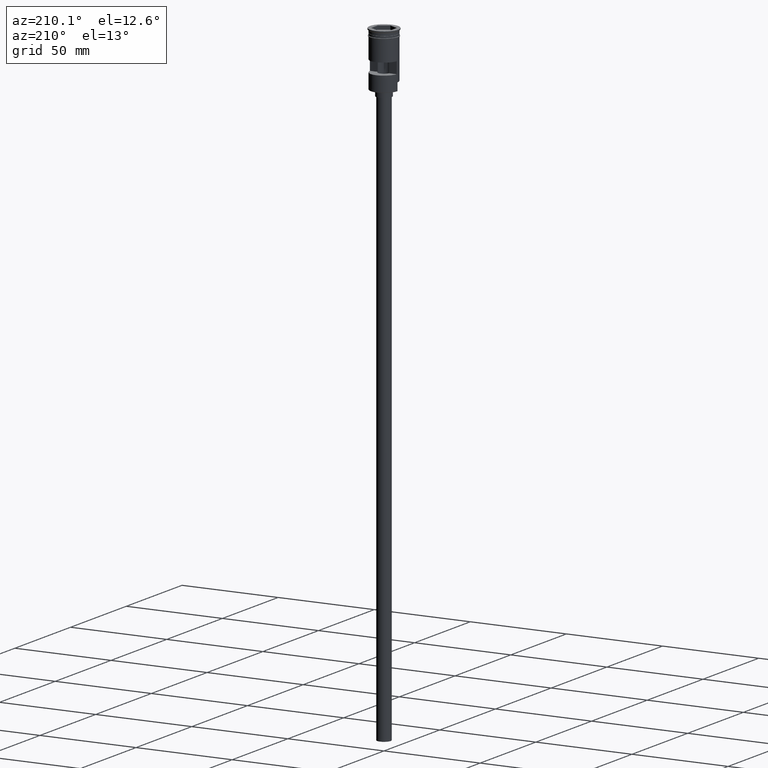
[diagram: clean part render]
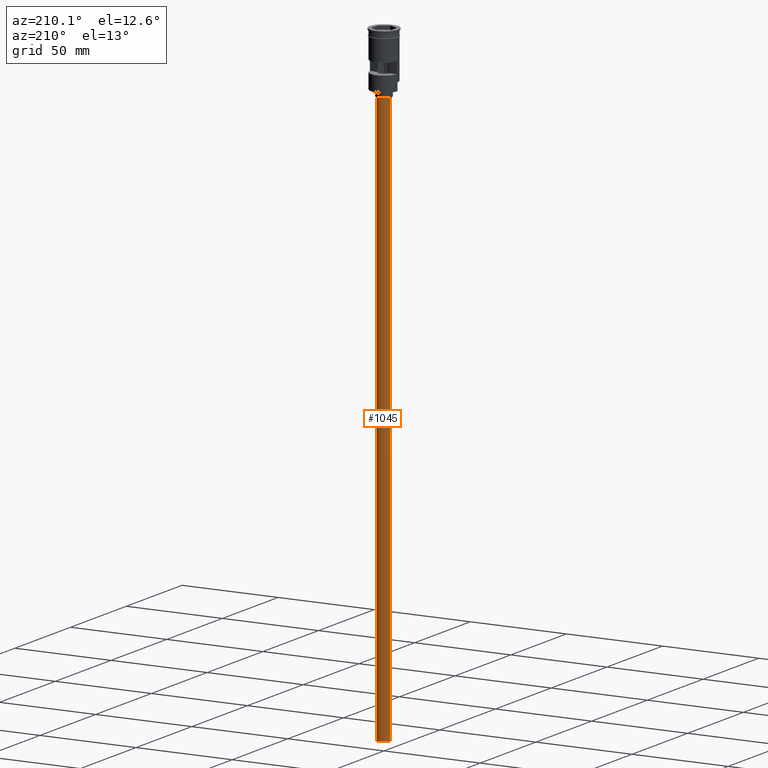
[diagram: same view with one face highlighted and labeled with its STEP entity id]
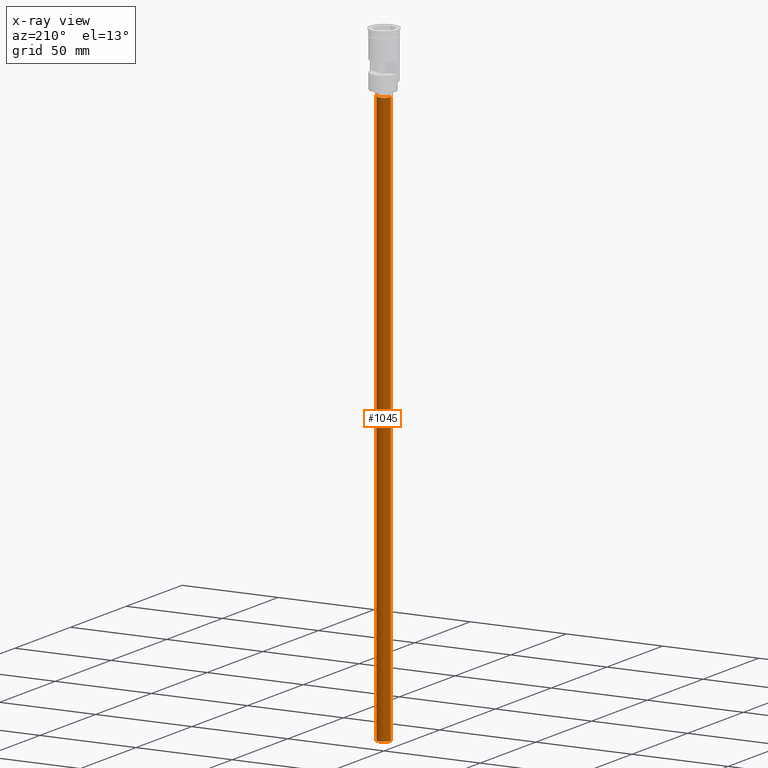
[diagram: x-ray of the same camera — body ghosted, the highlighted face saturated]
A machine part, auxiliary view. The second image highlights one B-rep face of the part: STEP entity #1045.
The next image is the same camera in x-ray: the body ghosted, the highlighted face saturated — about 0% of this face is hidden behind the body in this view.
In plain terms, the highlighted cylindrical surface (edge-blend (fillet) strip) has radius 3.5 mm, axis along (-0, -0, 1).
Its self-contained STEP definition (entity closure, byte-faithful):
#118 = ORIENTED_EDGE ( 'NONE', *, *, #241, .F. ) ;
#150 = DIRECTION ( 'NONE',  ( 1.000000000000000000, 0.000000000000000000, 0.000000000000000000 ) ) ;
#151 = CARTESIAN_POINT ( 'NONE',  ( -3.500000000000000444, 4.286263797015737088E-16, -31.50000000000000000 ) ) ;
#159 = CARTESIAN_POINT ( 'NONE',  ( -3.500000000000000444, 4.286263797015737088E-16, -328.5000000000000000 ) ) ;
#218 = VERTEX_POINT ( 'NONE', #965 ) ;
#241 = EDGE_CURVE ( 'NONE', #1065, #218, #648, .T. ) ;
#270 = LINE ( 'NONE', #159, #1258 ) ;
#291 = ORIENTED_EDGE ( 'NONE', *, *, #600, .T. ) ;
#308 = DIRECTION ( 'NONE',  ( 0.000000000000000000, 0.000000000000000000, -1.000000000000000000 ) ) ;
#336 = ORIENTED_EDGE ( 'NONE', *, *, #1252, .F. ) ;
#466 = CARTESIAN_POINT ( 'NONE',  ( 3.500000000000000444, 0.000000000000000000, -328.5000000000000000 ) ) ;
#494 = DIRECTION ( 'NONE',  ( -1.000000000000000000, 0.000000000000000000, 0.000000000000000000 ) ) ;
#501 = FACE_OUTER_BOUND ( 'NONE', #636, .T. ) ;
#588 = CIRCLE ( 'NONE', #1408, 3.500000000000000444 ) ;
#589 = VECTOR ( 'NONE', #820, 1000.000000000000000 ) ;
#600 = EDGE_CURVE ( 'NONE', #774, #1394, #588, .T. ) ;
#636 = EDGE_LOOP ( 'NONE', ( #118, #1497, #291, #336 ) ) ;
#648 = CIRCLE ( 'NONE', #1172, 3.500000000000000444 ) ;
#651 = AXIS2_PLACEMENT_3D ( 'NONE', #1140, #1134, #150 ) ;
#753 = EDGE_CURVE ( 'NONE', #1065, #774, #270, .T. ) ;
#766 = DIRECTION ( 'NONE',  ( -0.000000000000000000, -0.000000000000000000, 1.000000000000000000 ) ) ;
#774 = VERTEX_POINT ( 'NONE', #151 ) ;
#805 = DIRECTION ( 'NONE',  ( -1.000000000000000000, 0.000000000000000000, 0.000000000000000000 ) ) ;
#820 = DIRECTION ( 'NONE',  ( -0.000000000000000000, -0.000000000000000000, 1.000000000000000000 ) ) ;
#854 = DIRECTION ( 'NONE',  ( 0.000000000000000000, 0.000000000000000000, -1.000000000000000000 ) ) ;
#866 = CARTESIAN_POINT ( 'NONE',  ( -3.500000000000000444, 4.286263797015737088E-16, -328.5000000000000000 ) ) ;
#965 = CARTESIAN_POINT ( 'NONE',  ( 3.500000000000000444, 0.000000000000000000, -328.5000000000000000 ) ) ;
#1045 = ADVANCED_FACE ( 'NONE', ( #501 ), #1253, .T. ) ;
#1065 = VERTEX_POINT ( 'NONE', #866 ) ;
#1080 = LINE ( 'NONE', #466, #589 ) ;
#1134 = DIRECTION ( 'NONE',  ( -0.000000000000000000, -0.000000000000000000, 1.000000000000000000 ) ) ;
#1140 = CARTESIAN_POINT ( 'NONE',  ( 0.000000000000000000, 0.000000000000000000, -328.5000000000000000 ) ) ;
#1172 = AXIS2_PLACEMENT_3D ( 'NONE', #1322, #854, #494 ) ;
#1252 = EDGE_CURVE ( 'NONE', #218, #1394, #1080, .T. ) ;
#1253 = CYLINDRICAL_SURFACE ( 'NONE', #651, 3.500000000000000444 ) ;
#1258 = VECTOR ( 'NONE', #766, 1000.000000000000000 ) ;
#1322 = CARTESIAN_POINT ( 'NONE',  ( 0.000000000000000000, 0.000000000000000000, -328.5000000000000000 ) ) ;
#1394 = VERTEX_POINT ( 'NONE', #1523 ) ;
#1408 = AXIS2_PLACEMENT_3D ( 'NONE', #1535, #308, #805 ) ;
#1497 = ORIENTED_EDGE ( 'NONE', *, *, #753, .T. ) ;
#1523 = CARTESIAN_POINT ( 'NONE',  ( 3.500000000000000444, 0.000000000000000000, -31.50000000000000000 ) ) ;
#1535 = CARTESIAN_POINT ( 'NONE',  ( 0.000000000000000000, 0.000000000000000000, -31.50000000000000000 ) ) ;